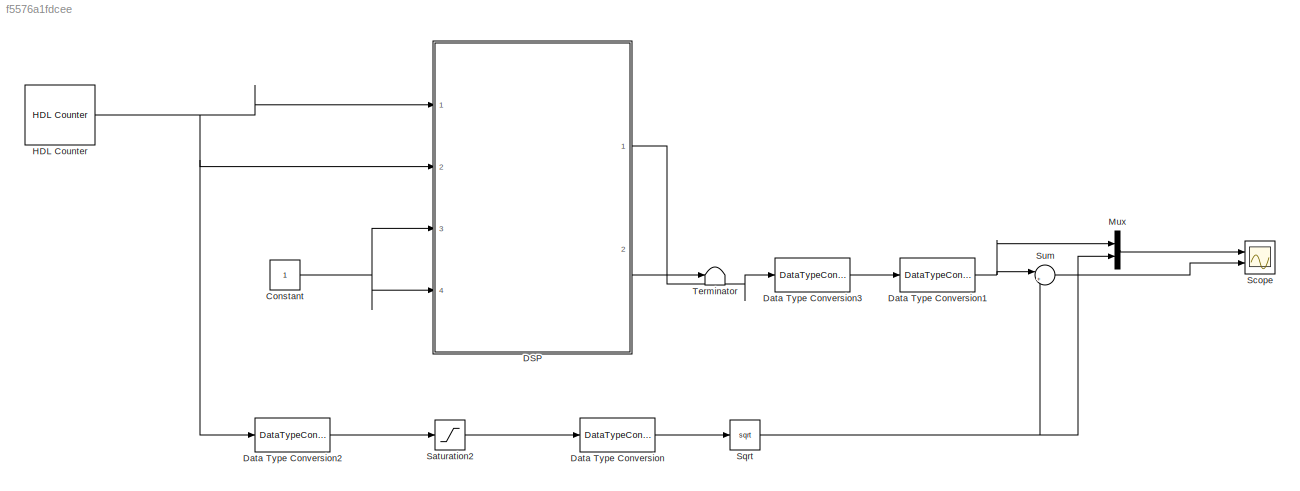
MODEL slx_f5576a1fdcee
KIND model
CONFIG AbsTol = auto
CONFIG EnableMultiTasking = off
CONFIG FixedStep = auto
CONFIG MaxStep = auto
CONFIG MinStep = auto
CONFIG RelTol = 1e-3
CONFIG SampleTimeConstraint = Unconstrained
CONFIG SolverName = FixedStepDiscrete
CONFIG StartTime = 0.0
CONFIG StopTime = 0.0002
WORKSPACE source: mxarray member
WORKSPACE test = 0
BLOCK [Constant] Constant
  OutDataTypeStr = int16
  SampleTime = 1/312.5e6
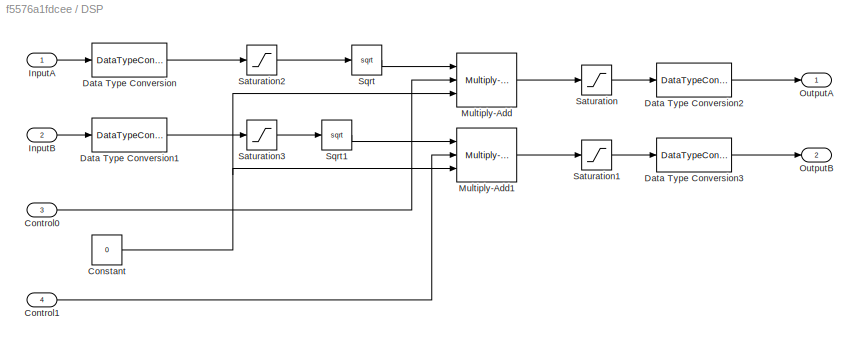
BLOCK [SubSystem] DSP
  Ports = [4, 2]
  RequestExecContextInheritance = off
BLOCK [Constant] DSP/Constant
  OutDataTypeStr = int16
  SampleTime = 1/312.5e6
  Value = 0
BLOCK [Inport] DSP/Control0
  OutDataTypeStr = fixdt(1,16,0)
  Port = 3
BLOCK [Inport] DSP/Control1
  OutDataTypeStr = fixdt(1,16,0)
  Port = 4
BLOCK [DataTypeConversion] DSP/Data Type Conversion
  ConvertRealWorld = Stored Integer (SI)
  OutDataTypeStr = fixdt(1,16,15)
  RndMeth = Floor
  SaturateOnIntegerOverflow = off
BLOCK [DataTypeConversion] DSP/Data Type Conversion1
  ConvertRealWorld = Stored Integer (SI)
  OutDataTypeStr = fixdt(1,16,15)
  RndMeth = Floor
  SaturateOnIntegerOverflow = off
BLOCK [DataTypeConversion] DSP/Data Type Conversion2
  ConvertRealWorld = Stored Integer (SI)
  OutDataTypeStr = int16
  RndMeth = Floor
  SaturateOnIntegerOverflow = off
BLOCK [DataTypeConversion] DSP/Data Type Conversion3
  ConvertRealWorld = Stored Integer (SI)
  OutDataTypeStr = int16
  RndMeth = Floor
  SaturateOnIntegerOverflow = off
BLOCK [Inport] DSP/InputA
  OutDataTypeStr = fixdt(1,16,0)
BLOCK [Inport] DSP/InputB
  OutDataTypeStr = fixdt(1,16,0)
  Port = 2
BLOCK [Reference] DSP/Multiply-Add  REF=hdlsllib/HDL Operations/Multiply-Add
  Ports = [3, 1]
  SourceBlock = hdlsllib/HDL Operations/Multiply-Add
  SourceProductBaseCode = SL
  SourceType = Multiply-Add
BLOCK [Reference] DSP/Multiply-Add1  REF=hdlsllib/HDL Operations/Multiply-Add
  Ports = [3, 1]
  SourceBlock = hdlsllib/HDL Operations/Multiply-Add
  SourceProductBaseCode = SL
  SourceType = Multiply-Add
BLOCK [Outport] DSP/OutputA
  OutDataTypeStr = fixdt(1,16,0)
  VectorParamsAs1DForOutWhenUnconnected = off
BLOCK [Outport] DSP/OutputB
  OutDataTypeStr = fixdt(1,16,0)
  Port = 2
  VectorParamsAs1DForOutWhenUnconnected = off
BLOCK [Saturate] DSP/Saturation
  LowerLimit = -1
  UpperLimit = 1
BLOCK [Saturate] DSP/Saturation1
  LowerLimit = -1
  UpperLimit = 1
BLOCK [Saturate] DSP/Saturation2
  LowerLimit = 0
  UpperLimit = 1
BLOCK [Saturate] DSP/Saturation3
  LowerLimit = 0
  UpperLimit = 1
BLOCK [Sqrt] DSP/Sqrt
  OutputSignalType = real
BLOCK [Sqrt] DSP/Sqrt1
  OutputSignalType = real
BLOCK [DataTypeConversion] Data Type Conversion
  OutDataTypeStr = double
  RndMeth = Floor
  SaturateOnIntegerOverflow = off
BLOCK [DataTypeConversion] Data Type Conversion1
  OutDataTypeStr = double
  RndMeth = Floor
  SaturateOnIntegerOverflow = off
BLOCK [DataTypeConversion] Data Type Conversion2
  ConvertRealWorld = Stored Integer (SI)
  OutDataTypeStr = fixdt(1,16,15)
  RndMeth = Floor
  SaturateOnIntegerOverflow = off
BLOCK [DataTypeConversion] Data Type Conversion3
  ConvertRealWorld = Stored Integer (SI)
  OutDataTypeStr = fixdt(1,16,15)
  RndMeth = Floor
  SaturateOnIntegerOverflow = off
BLOCK [Reference] HDL Counter  REF=hdlsllib/Sources/HDL Counter
  Ports = [0, 1]
  SourceBlock = hdlsllib/Sources/HDL Counter
  SourceProductBaseCode = SL
  SourceType = HDL Counter
BLOCK [Mux] Mux
  DisplayOption = bar
  Inputs = 2
  Ports = [2, 1]
BLOCK [Saturate] Saturation2
  LowerLimit = 0
  UpperLimit = 1
BLOCK [Scope] Scope
  Floating = off
  NumInputPorts = 2
  Ports = [2]
  ScopeSpecificationString = Simulink.scopes.TimeScopeBlockCfg('CurrentConfiguration', extmgr.ConfigurationSet(extmgr.Configuration('Core','General UI',true),extmgr.Configuration('Core','Source UI',true),extmgr.Configuration('Sources','WiredSimulink',true),extmgr.Configuration('Visuals','Time Domain',true,'SerializedDisplays',{struct('MinYLimReal','-0.125','MaxYLimReal','1.12498','YLabelReal','','MinYLimMag','0.00000','MaxYLi...<+1961ch>
BLOCK [Sqrt] Sqrt
BLOCK [Sum] Sum
  Inputs = |+-
  NameLocation = top
  Ports = [2, 1]
BLOCK [Terminator] Terminator
NET Constant:1 -> DSP:3, DSP:4
NET DSP/Constant:1 -> DSP/Multiply-Add1:3, DSP/Multiply-Add:3
LINE DSP/Control0:1 -> DSP/Multiply-Add:2
LINE DSP/Control1:1 -> DSP/Multiply-Add1:2
LINE DSP/Data Type Conversion1:1 -> DSP/Saturation3:1
LINE DSP/Data Type Conversion2:1 -> DSP/OutputA:1
LINE DSP/Data Type Conversion3:1 -> DSP/OutputB:1
LINE DSP/Data Type Conversion:1 -> DSP/Saturation2:1
LINE DSP/InputA:1 -> DSP/Data Type Conversion:1
LINE DSP/InputB:1 -> DSP/Data Type Conversion1:1
LINE DSP/Multiply-Add1:1 -> DSP/Saturation1:1
LINE DSP/Multiply-Add:1 -> DSP/Saturation:1
LINE DSP/Saturation1:1 -> DSP/Data Type Conversion3:1
LINE DSP/Saturation2:1 -> DSP/Sqrt:1
LINE DSP/Saturation3:1 -> DSP/Sqrt1:1
LINE DSP/Saturation:1 -> DSP/Data Type Conversion2:1
LINE DSP/Sqrt1:1 -> DSP/Multiply-Add1:1
LINE DSP/Sqrt:1 -> DSP/Multiply-Add:1
LINE DSP:1 -> Data Type Conversion3:1
LINE DSP:2 -> Terminator:1
NET Data Type Conversion1:1 -> Mux:1, Sum:1
LINE Data Type Conversion2:1 -> Saturation2:1
LINE Data Type Conversion3:1 -> Data Type Conversion1:1
LINE Data Type Conversion:1 -> Sqrt:1
NET HDL Counter:1 -> DSP:1, DSP:2, Data Type Conversion2:1
LINE Mux:1 -> Scope:1
LINE Saturation2:1 -> Data Type Conversion:1
NET Sqrt:1 -> Mux:2, Sum:2
LINE Sum:1 -> Scope:2
note: NET lines group one-source signal fan-out (src -> all destinations, sorted); 1:1 wires keep LINE
